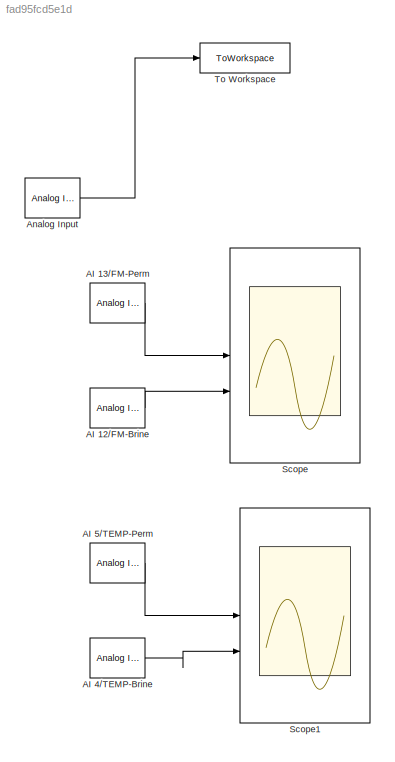
MODEL slx_fad95fcd5e1d
KIND model
CONFIG AbsTol = auto
CONFIG EnableMultiTasking = off
CONFIG FixedStep = auto
CONFIG MaxStep = auto
CONFIG MinStep = auto
CONFIG RelTol = 1e-3
CONFIG SampleTimeConstraint = Unconstrained
CONFIG SolverName = VariableStepAuto
CONFIG StartTime = 0.0
CONFIG StopTime = 3
BLOCK [Reference] AI 12//FM-Brine  REF=sldrtlib/Analog Input
  AttributesFormatString = National Instruments\nPCIe-6343 [auto]
  SourceBlock = sldrtlib/Analog Input
  SourceType = Simulink Desktop Real-Time Analog Input
BLOCK [Reference] AI 13//FM-Perm  REF=sldrtlib/Analog Input
  AttributesFormatString = National Instruments\nPCIe-6343 [auto]
  SourceBlock = sldrtlib/Analog Input
  SourceType = Simulink Desktop Real-Time Analog Input
BLOCK [Reference] AI 4//TEMP-Brine  REF=sldrtlib/Analog Input
  AttributesFormatString = National Instruments\nPCIe-6343 [auto]
  SourceBlock = sldrtlib/Analog Input
  SourceType = Simulink Desktop Real-Time Analog Input
BLOCK [Reference] AI 5//TEMP-Perm  REF=sldrtlib/Analog Input
  AttributesFormatString = National Instruments\nPCIe-6343 [auto]
  SourceBlock = sldrtlib/Analog Input
  SourceType = Simulink Desktop Real-Time Analog Input
BLOCK [Reference] Analog Input  REF=sldrtlib/Analog Input
  AttributesFormatString = National Instruments\nPCIe-6343 [auto]
  SourceBlock = sldrtlib/Analog Input
  SourceType = Simulink Desktop Real-Time Analog Input
BLOCK [Scope] Scope
  ActiveDisplayYMaximum = 0.3586
  ActiveDisplayYMinimum = -9.46588
  DataLoggingLimitDataPoints = on
  Floating = off
  GraphicalSettings = {"Style":{"BackgroundColor":[0.12941176470588237,0.12941176470588237,0.12941176470588237],"AxesColor":[0.07058823529411765,0.07058823529411765,0.07058823529411765],"LabelsColor":[0.8509803921568627,0.8509803921568627,0.8509803921568627],"PreserveColors":false,"Visible":[true,true],"LineStyle":["-","-"],"LineWidth":[1.5,1.5],"BarWidth":[0.9,0.9],"LineColor":["auto","auto"],"LineFaceAlpha":[1,1],"Li...<+2046ch>
  MultipleDisplayCache = [{"MaxYLimMag":9.46588,"MaxYLimReal":0.3586,"MinYLimMag":0,"MinYLimReal":-9.46588,"PlotAsMagnitudePhase":false,"ShowGrid":true,"ShowLegend":false,"Title":"%<SignalLabel>","YLabel":""}]
  NumInputPorts = 2
  ScopeFrameLocation = window
  TimeSpanOverrunAction = Scroll
  WasSavedAsWebScope = on
  WindowPosition = [827.000000,413.000000,838.000000,419.000000,]
BLOCK [Scope] Scope1
  ActiveDisplayYMaximum = -1.62397
  ActiveDisplayYMinimum = -4.84701
  DataLoggingLimitDataPoints = on
  DataLoggingVariableName = ScopeData1
  Floating = off
  GraphicalSettings = {"GraphicalSettings":{"LegacySettings":true,"Style":{"AxesScalingProperties":{"AutoScaleXAxisLimits":true,"ScaleAxesLimitsAtStop":false},"Cursors":{"CursorChannels":"[1 1]","Enabled":"true","Horizontal":"false","LinkToWaveform":"true","LockSpacing":"false","SnapToData":"false","XLocation":"[1.8764367816092 1.1549815498155]","YLocation":"[NaN NaN]"},"Style":{"AxesColor":"[0 0 0]","ChannelNames":[""...<+805ch>
  MultipleDisplayCache = [{"MaxYLimMag":4.84701,"MaxYLimReal":-1.62397,"MinYLimMag":0,"MinYLimReal":-4.84701,"PlotAsMagnitudePhase":false,"ShowGrid":true,"ShowLegend":false,"Title":"%<SignalLabel>","YLabel":""}]
  NumInputPorts = 2
  TimeSpanOverrunAction = Scroll
  WasSavedAsWebScope = on
  WindowPosition = [842 42 838 419]
BLOCK [ToWorkspace] To Workspace
  FixptAsFi = on
  MaxDataPoints = inf
  SampleTime = -1
  SaveFormat = Timeseries
  VariableName = Sensor
LINE AI 12//FM-Brine:1 -> Scope:2
LINE AI 13//FM-Perm:1 -> Scope:1
LINE AI 4//TEMP-Brine:1 -> Scope1:2
LINE AI 5//TEMP-Perm:1 -> Scope1:1
LINE Analog Input:1 -> To Workspace:1
